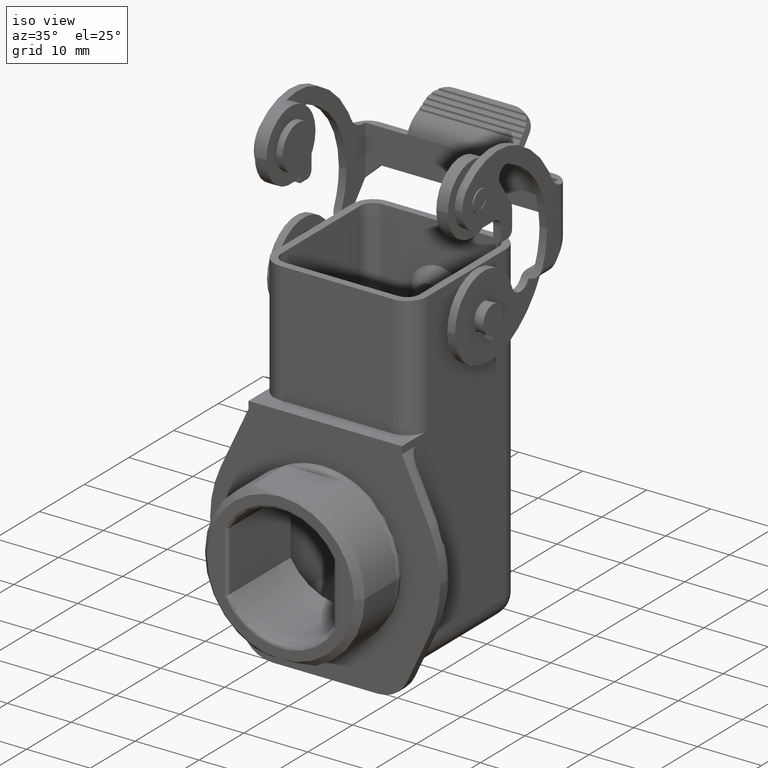
[diagram: clean part render]
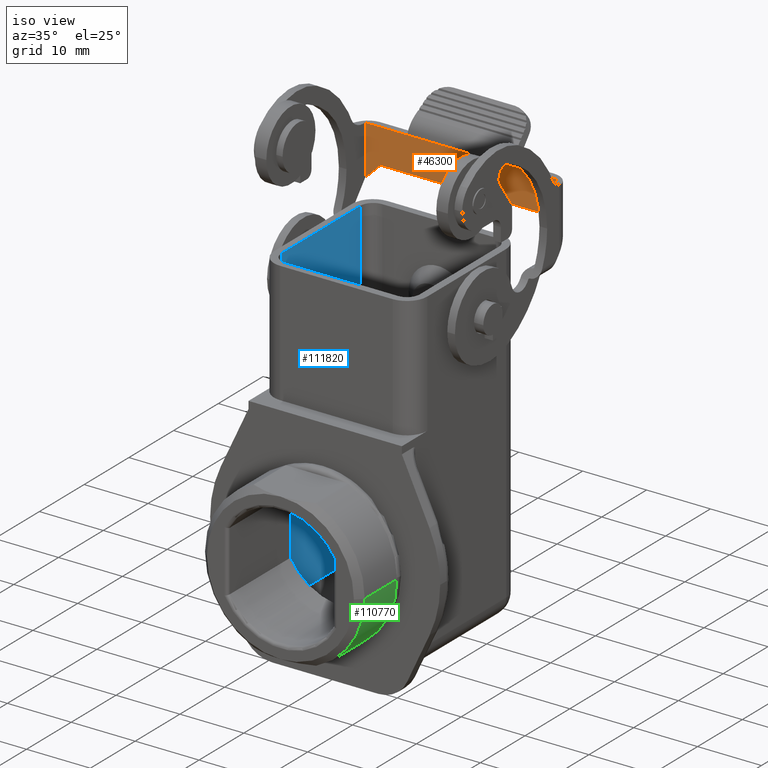
[diagram: same view with three faces highlighted in distinct colors, each labeled with its STEP entity id]
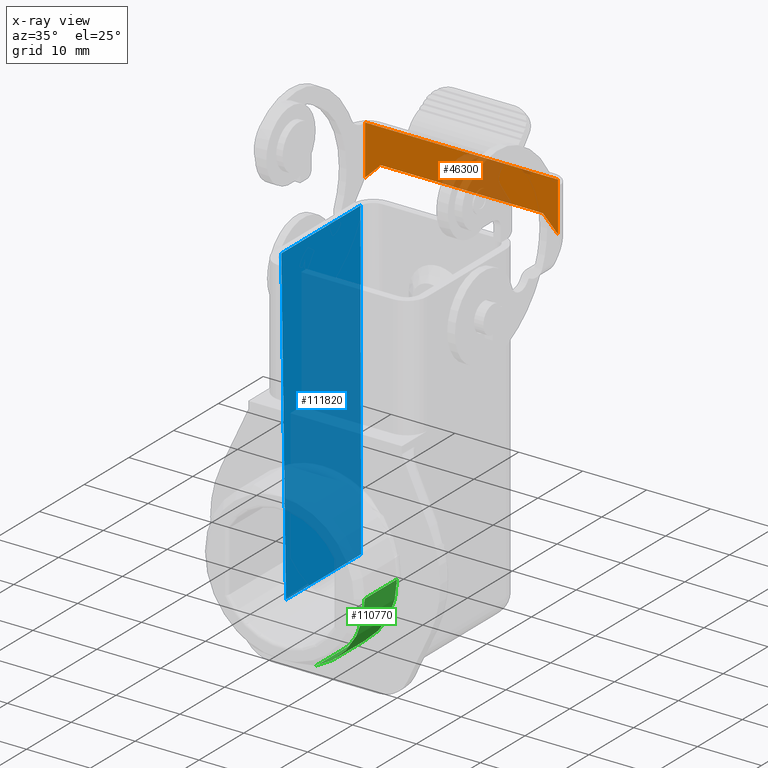
[diagram: x-ray of the same camera — body ghosted, the three highlighted faces saturated]
A machine part, iso view with three faces highlighted in distinct colors.
The next image is the same camera in x-ray (body ghosted, the three faces saturated) — at least one of them is partly hidden behind the body in this view.
Their STEP definitions:

[orange] entity #46300 — the highlighted planar face has unit normal (-0, -1, 0).
#6870=CARTESIAN_POINT('',(61.7501481137624,16.4600544333059,0.));
#6880=VERTEX_POINT('',#6870);
#6910=CARTESIAN_POINT('',(61.7501481137624,16.4600544333059,0.));
#6920=DIRECTION('',(0.,0.,1.));
#6930=VECTOR('',#6920,1.);
#6940=LINE('',#6910,#6930);
#6950=CARTESIAN_POINT('',(61.7501481137624,16.4600544333059,
-6.58153906408225));
#6960=VERTEX_POINT('',#6950);
#6970=EDGE_CURVE('',#6960,#6880,#6940,.T.);
#10950=CARTESIAN_POINT('',(61.7501481137624,16.4600544333059,
-23.6184609359178));
#10960=VERTEX_POINT('',#10950);
#11740=CARTESIAN_POINT('',(61.7501481137624,16.4600544333071,
-6.15561286728636));
#11750=DIRECTION('',(-0.,-0.,1.));
#11760=VECTOR('',#11750,1.);
#11770=LINE('',#11740,#11760);
#11780=EDGE_CURVE('',#10960,#6960,#11770,.T.);
#12740=CARTESIAN_POINT('',(61.7501481137624,8.66822843972795,-30.2));
#12750=VERTEX_POINT('',#12740);
#12780=CARTESIAN_POINT('',(61.7501481137624,38.8682284397279,0.));
#12790=DIRECTION('',(-0.,0.707106781186547,0.707106781186548));
#12800=VECTOR('',#12790,1.);
#12810=LINE('',#12780,#12800);
#12820=CARTESIAN_POINT('',(61.7501481137624,11.0600544333059,
-27.808174006422));
#12830=VERTEX_POINT('',#12820);
#12840=EDGE_CURVE('',#12750,#12830,#12810,.T.);
#26560=CARTESIAN_POINT('',(61.7501481137624,11.0600544333059,0.));
#26570=DIRECTION('',(-0.,0.,-1.));
#26580=VECTOR('',#26570,1.);
#26590=LINE('',#26560,#26580);
#26600=CARTESIAN_POINT('',(61.7501481137624,11.0600544333059,
-2.39182599357796));
#26610=VERTEX_POINT('',#26600);
#26620=EDGE_CURVE('',#26610,#12830,#26590,.T.);
#28220=CARTESIAN_POINT('',(61.7501481137624,16.4600544333059,0.));
#28230=DIRECTION('',(-0.,-0.,-1.));
#28240=VECTOR('',#28230,1.);
#28250=LINE('',#28220,#28240);
#28260=CARTESIAN_POINT('',(61.7501481137624,16.4600544333059,-30.2));
#28270=VERTEX_POINT('',#28260);
#28280=EDGE_CURVE('',#10960,#28270,#28250,.T.);
#33270=CARTESIAN_POINT('',(61.7501481137624,8.66822843972795,1.E-15));
#33280=VERTEX_POINT('',#33270);
#33310=CARTESIAN_POINT('',(61.7501481137624,0.,0.));
#33320=DIRECTION('',(-0.,-1.,-0.));
#33330=VECTOR('',#33320,1.);
#33340=LINE('',#33310,#33330);
#33350=EDGE_CURVE('',#6880,#33280,#33340,.T.);
#46050=CARTESIAN_POINT('',(61.7501481137624,16.6548532331454,
-30.95500315));
#46060=DIRECTION('',(-1.,0.,0.));
#46070=DIRECTION('',(0.,1.,0.));
#46080=AXIS2_PLACEMENT_3D('',#46050,#46060,#46070);
#46090=PLANE('',#46080);
#46100=CARTESIAN_POINT('',(61.7501481137624,8.66822843972795,0.));
#46110=DIRECTION('',(-0.,0.707106781186547,-0.707106781186548));
#46120=VECTOR('',#46110,1.);
#46130=LINE('',#46100,#46120);
#46140=EDGE_CURVE('',#33280,#26610,#46130,.T.);
#46150=ORIENTED_EDGE('',*,*,#46140,.F.);
#46160=ORIENTED_EDGE('',*,*,#26620,.F.);
#46170=ORIENTED_EDGE('',*,*,#12840,.T.);
#46180=CARTESIAN_POINT('',(61.7501481137624,0.,-30.2));
#46190=DIRECTION('',(-0.,-1.,0.));
#46200=VECTOR('',#46190,1.);
#46210=LINE('',#46180,#46200);
#46220=EDGE_CURVE('',#28270,#12750,#46210,.T.);
#46230=ORIENTED_EDGE('',*,*,#46220,.T.);
#46240=ORIENTED_EDGE('',*,*,#28280,.T.);
#46250=ORIENTED_EDGE('',*,*,#11780,.F.);
#46260=ORIENTED_EDGE('',*,*,#6970,.F.);
#46270=ORIENTED_EDGE('',*,*,#33350,.F.);
#46280=EDGE_LOOP('',(#46270,#46260,#46250,#46240,#46230,#46170,#46160,
#46150));
#46290=FACE_OUTER_BOUND('',#46280,.T.);
#46300=ADVANCED_FACE('',(#46290),#46090,.T.);

[blue] entity #111820 — the highlighted planar face has unit normal (1, 0, 0.0087).
#74660=CARTESIAN_POINT('',(39.888459528837,50.4904266250347,26.));
#74670=VERTEX_POINT('',#74660);
#74700=CARTESIAN_POINT('',(39.888459528837,0.,26.));
#74710=DIRECTION('',(-0.,1.,0.));
#74720=VECTOR('',#74710,1.);
#74730=LINE('',#74700,#74720);
#74740=CARTESIAN_POINT('',(39.888459528837,32.8204593749653,26.));
#74750=VERTEX_POINT('',#74740);
#74760=EDGE_CURVE('',#74750,#74670,#74730,.T.);
#111520=CARTESIAN_POINT('',(39.8777652805386,32.3787070437136,
27.225439476655));
#111530=DIRECTION('',(0.999961923064171,0.,0.00872653549837403));
#111540=DIRECTION('',(0.00872653549837403,0.,-0.999961923064171));
#111550=AXIS2_PLACEMENT_3D('',#111520,#111530,#111540);
#111560=PLANE('',#111550);
#111570=ORIENTED_EDGE('',*,*,#74760,.F.);
#111580=CARTESIAN_POINT('',(39.8840329990083,50.4948531548634,
26.5072300778226));
#111590=DIRECTION('',(0.00872620324394408,-0.00872620324394408,
-0.99992385047757));
#111600=VECTOR('',#111590,1.);
#111610=LINE('',#111580,#111600);
#111620=CARTESIAN_POINT('',(40.3162283612273,50.0626577926444,
-23.0174530709968));
#111630=VERTEX_POINT('',#111620);
#111640=EDGE_CURVE('',#74670,#111630,#111610,.T.);
#111650=ORIENTED_EDGE('',*,*,#111640,.F.);
#111660=CARTESIAN_POINT('',(40.3162283612273,33.2482282073556,
-23.0174530709967));
#111670=DIRECTION('',(0.,1.,0.));
#111680=VECTOR('',#111670,1.);
#111690=LINE('',#111660,#111680);
#111700=CARTESIAN_POINT('',(40.3162283612273,33.2482282073556,
-23.0174530709967));
#111710=VERTEX_POINT('',#111700);
#111720=EDGE_CURVE('',#111710,#111630,#111690,.T.);
#111730=ORIENTED_EDGE('',*,*,#111720,.T.);
#111740=CARTESIAN_POINT('',(40.3162283612273,33.2482282073556,
-23.0174530709967));
#111750=DIRECTION('',(-0.00872620324394396,-0.00872620324394425,
0.99992385047757));
#111760=VECTOR('',#111750,1.);
#111770=LINE('',#111740,#111760);
#111780=EDGE_CURVE('',#111710,#74750,#111770,.T.);
#111790=ORIENTED_EDGE('',*,*,#111780,.F.);
#111800=EDGE_LOOP('',(#111790,#111730,#111650,#111570));
#111810=FACE_OUTER_BOUND('',#111800,.T.);
#111820=ADVANCED_FACE('',(#111810),#111560,.T.);

[green] entity #110770 — the highlighted cylindrical surface (partial cylindrical patch) has radius 12.5 mm, axis along (0, -1, 0).
#110360=CARTESIAN_POINT('',(50.723367,25.53544615,-11.0000000938588));
#110370=DIRECTION('',(0.,-1.,0.));
#110380=DIRECTION('',(-1.,-0.,0.));
#110390=AXIS2_PLACEMENT_3D('',#110360,#110370,#110380);
#110400=CYLINDRICAL_SURFACE('',#110390,12.5);
#110410=CARTESIAN_POINT('',(50.723367,18.155443,-11.0000000938587));
#110420=DIRECTION('',(-2.83343014910602E-16,-1.,0.));
#110430=DIRECTION('',(-1.,2.83343014910602E-16,0.));
#110440=AXIS2_PLACEMENT_3D('',#110410,#110420,#110430);
#110450=CIRCLE('',#110440,12.5);
#110460=CARTESIAN_POINT('',(55.6223464855664,18.155443,-22.5000000938587
));
#110470=VERTEX_POINT('',#110460);
#110480=CARTESIAN_POINT('',(63.223367,18.155443,-11.0000000938588));
#110490=VERTEX_POINT('',#110480);
#110500=EDGE_CURVE('',#110470,#110490,#110450,.T.);
#110510=ORIENTED_EDGE('',*,*,#110500,.F.);
#110520=CARTESIAN_POINT('',(63.223367,25.53544615,-11.0000000938588));
#110530=DIRECTION('',(0.,-1.,0.));
#110540=VECTOR('',#110530,1.);
#110550=LINE('',#110520,#110540);
#110560=CARTESIAN_POINT('',(63.223367,25.355443,-11.0000000938588));
#110570=VERTEX_POINT('',#110560);
#110580=EDGE_CURVE('',#110570,#110490,#110550,.T.);
#110590=ORIENTED_EDGE('',*,*,#110580,.T.);
#110600=CARTESIAN_POINT('',(50.723367,25.355443,-11.0000000938588));
#110610=DIRECTION('',(0.,-1.,0.));
#110620=DIRECTION('',(-1.,0.,0.));
#110630=AXIS2_PLACEMENT_3D('',#110600,#110610,#110620);
#110640=CIRCLE('',#110630,12.5);
#110650=CARTESIAN_POINT('',(55.6223464855664,25.355443,-22.5000000938587
));
#110660=VERTEX_POINT('',#110650);
#110670=EDGE_CURVE('',#110660,#110570,#110640,.T.);
#110680=ORIENTED_EDGE('',*,*,#110670,.T.);
#110690=CARTESIAN_POINT('',(55.6223464855664,25.53544615,
-22.5000000938588));
#110700=DIRECTION('',(0.,-1.,0.));
#110710=VECTOR('',#110700,1.);
#110720=LINE('',#110690,#110710);
#110730=EDGE_CURVE('',#110660,#110470,#110720,.T.);
#110740=ORIENTED_EDGE('',*,*,#110730,.F.);
#110750=EDGE_LOOP('',(#110740,#110680,#110590,#110510));
#110760=FACE_OUTER_BOUND('',#110750,.T.);
#110770=ADVANCED_FACE('',(#110760),#110400,.T.);